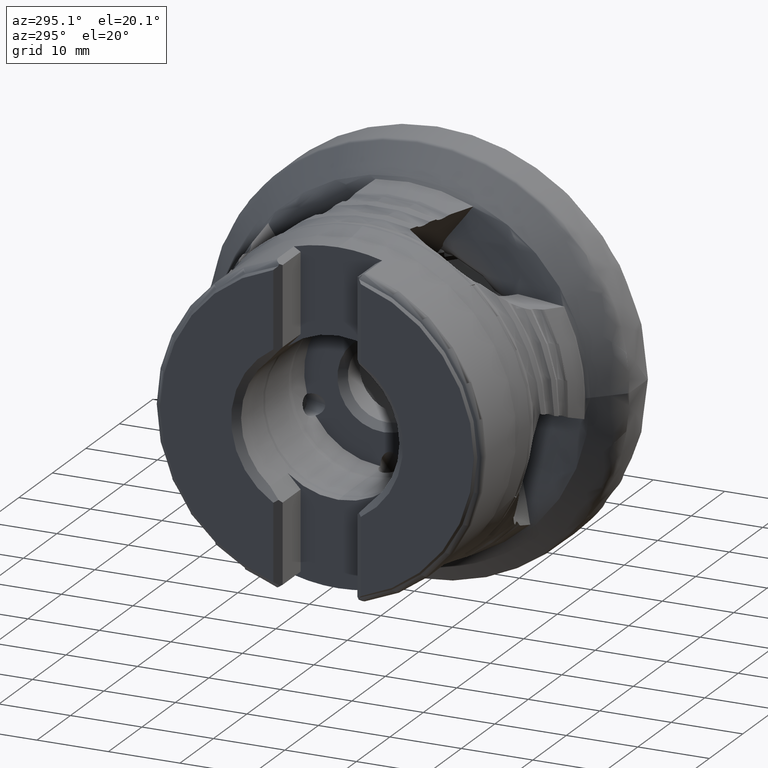
[diagram: clean part render]
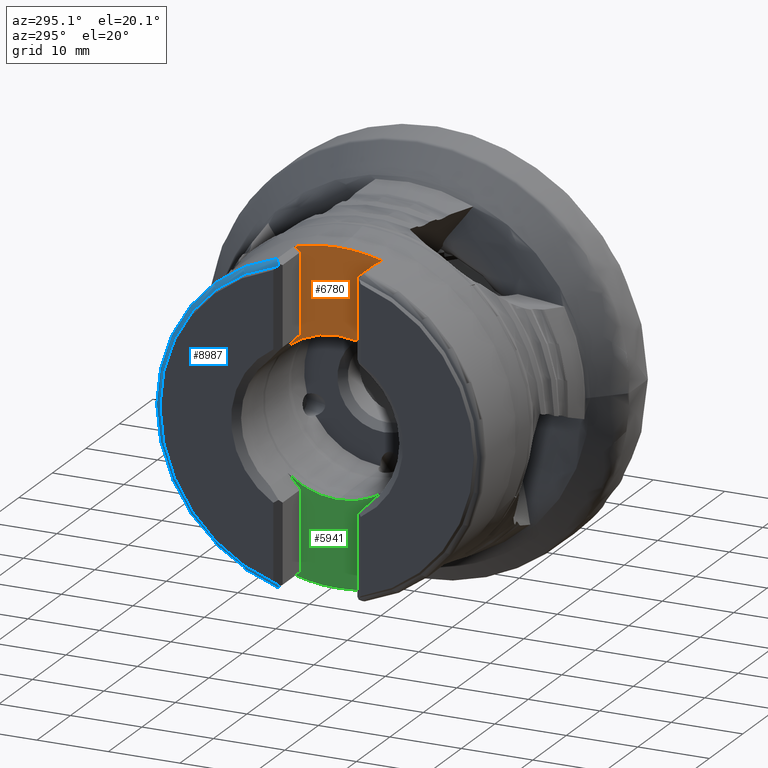
[diagram: same view with three faces highlighted in distinct colors, each labeled with its STEP entity id]
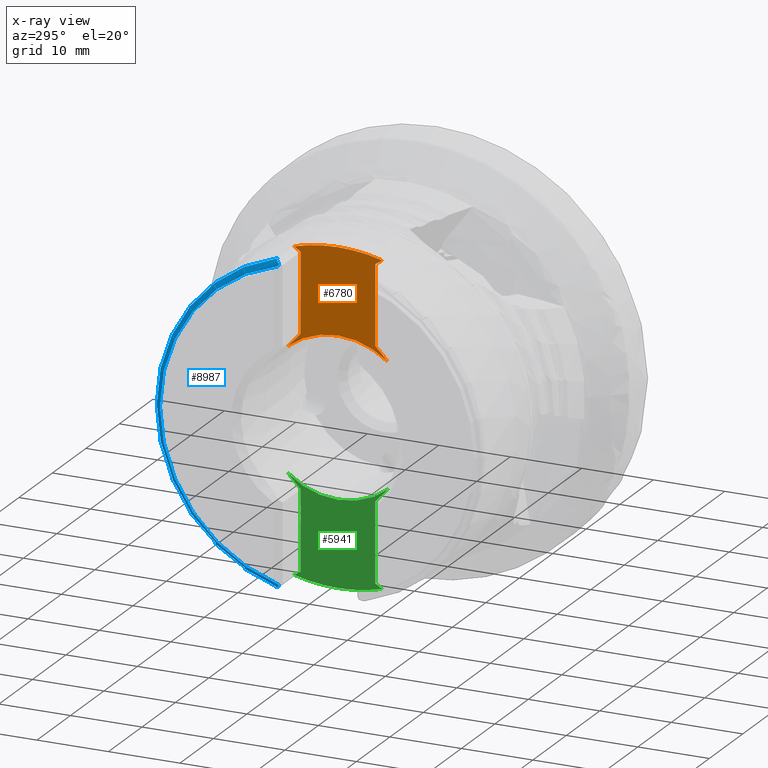
[diagram: x-ray of the same camera — body ghosted, the three highlighted faces saturated]
A machine part, auxiliary view with three faces highlighted in distinct colors.
The next image is the same camera in x-ray (body ghosted, the three faces saturated) — at least one of them is partly hidden behind the body in this view.
Their STEP definitions:

[orange] entity #6780 — the highlighted planar face has unit normal (1, 0, 0).
#7 = VERTEX_POINT ( 'NONE', #4798 ) ;
#51 = ORIENTED_EDGE ( 'NONE', *, *, #8656, .F. ) ;
#523 = CARTESIAN_POINT ( 'NONE',  ( -32.77900000000001800, 0.0000000000000000000, 0.0000000000000000000 ) ) ;
#537 = CARTESIAN_POINT ( 'NONE',  ( -32.77900000000001800, 2.816687638038911600E-015, 22.99999999999999300 ) ) ;
#590 = DIRECTION ( 'NONE',  ( -3.921983510904086700E-015, 1.000000000000000000, 4.440892098500626200E-015 ) ) ;
#642 = CARTESIAN_POINT ( 'NONE',  ( -32.77900000000003900, 5.229999999999996900, 10.48123730624397600 ) ) ;
#654 = LINE ( 'NONE', #5937, #8062 ) ;
#867 = ORIENTED_EDGE ( 'NONE', *, *, #6216, .T. ) ;
#948 = CARTESIAN_POINT ( 'NONE',  ( -32.77899999999999600, -5.230000000000003100, -30.00000000000000400 ) ) ;
#962 = ORIENTED_EDGE ( 'NONE', *, *, #4403, .T. ) ;
#1035 = AXIS2_PLACEMENT_3D ( 'NONE', #3174, #6946, #8511 ) ;
#1154 = EDGE_CURVE ( 'NONE', #5548, #6891, #654, .T. ) ;
#1320 = VERTEX_POINT ( 'NONE', #7067 ) ;
#1471 = AXIS2_PLACEMENT_3D ( 'NONE', #523, #4310, #590 ) ;
#1692 = FACE_OUTER_BOUND ( 'NONE', #8706, .T. ) ;
#2167 = DIRECTION ( 'NONE',  ( -2.712795907242793300E-015, 0.6815650443889295100, -0.7317575351625130700 ) ) ;
#2208 = EDGE_CURVE ( 'NONE', #2907, #3868, #7927, .T. ) ;
#2478 = ORIENTED_EDGE ( 'NONE', *, *, #7162, .T. ) ;
#2524 = DIRECTION ( 'NONE',  ( -3.980245069162847400E-015, 1.000000000000000000, 0.0000000000000000000 ) ) ;
#2907 = VERTEX_POINT ( 'NONE', #5744 ) ;
#2958 = VECTOR ( 'NONE', #4639, 1000.000000000000000 ) ;
#2970 = DIRECTION ( 'NONE',  ( -3.921983510904086700E-015, 1.000000000000000000, -8.881784197001252300E-016 ) ) ;
#2982 = CIRCLE ( 'NONE', #5565, 11.07499999999999800 ) ;
#3092 = CARTESIAN_POINT ( 'NONE',  ( -32.77900000000011700, 25.43243176921199800, 2.511602314343951600 ) ) ;
#3174 = CARTESIAN_POINT ( 'NONE',  ( -32.77900000000001800, 0.0000000000000000000, 0.0000000000000000000 ) ) ;
#3222 = DIRECTION ( 'NONE',  ( 1.000000000000000000, 3.980245069162847400E-015, 0.0000000000000000000 ) ) ;
#3420 = EDGE_CURVE ( 'NONE', #6065, #8264, #4841, .T. ) ;
#3451 = CARTESIAN_POINT ( 'NONE',  ( -32.77899999999999600, -5.230000000000003100, 21.56497531350624500 ) ) ;
#3555 = CIRCLE ( 'NONE', #1471, 22.99999999999999300 ) ;
#3667 = VECTOR ( 'NONE', #7630, 1000.000000000000000 ) ;
#3772 = LINE ( 'NONE', #948, #5526 ) ;
#3788 = ORIENTED_EDGE ( 'NONE', *, *, #5597, .T. ) ;
#3868 = VERTEX_POINT ( 'NONE', #4155 ) ;
#3945 = CARTESIAN_POINT ( 'NONE',  ( -32.77899999999994700, -17.88622751827882600, 7.200749130979175100 ) ) ;
#4041 = EDGE_CURVE ( 'NONE', #5548, #1320, #6608, .T. ) ;
#4155 = CARTESIAN_POINT ( 'NONE',  ( -32.77899999999999600, -5.230000000000003100, 10.48123730624394800 ) ) ;
#4252 = DIRECTION ( 'NONE',  ( -3.759220173674345600E-015, 1.000000000000000000, -3.552713678800500900E-015 ) ) ;
#4310 = DIRECTION ( 'NONE',  ( -1.000000000000000000, -3.980245069162846600E-015, -0.0000000000000000000 ) ) ;
#4403 = EDGE_CURVE ( 'NONE', #8264, #7, #3555, .T. ) ;
#4617 = DIRECTION ( 'NONE',  ( -2.712795907242801100E-015, 0.6815650443889314000, 0.7317575351625113000 ) ) ;
#4639 = DIRECTION ( 'NONE',  ( 3.380712572557630200E-015, -0.8493729692048046500, -0.5277931026303904800 ) ) ;
#4688 = CIRCLE ( 'NONE', #1035, 11.07499999999999800 ) ;
#4798 = CARTESIAN_POINT ( 'NONE',  ( -32.77900000000004600, 6.178756816328365700, 22.15452468920684100 ) ) ;
#4841 = CIRCLE ( 'NONE', #5698, 22.99999999999999300 ) ;
#4976 = DIRECTION ( 'NONE',  ( -0.0000000000000000000, -0.0000000000000000000, 1.000000000000000000 ) ) ;
#5100 = EDGE_CURVE ( 'NONE', #6773, #6891, #2982, .T. ) ;
#5204 = CARTESIAN_POINT ( 'NONE',  ( -32.77899999999998900, -6.178756816328315100, 22.15452468920685200 ) ) ;
#5526 = VECTOR ( 'NONE', #6777, 1000.000000000000000 ) ;
#5548 = VERTEX_POINT ( 'NONE', #642 ) ;
#5565 = AXIS2_PLACEMENT_3D ( 'NONE', #9468, #7247, #4252 ) ;
#5597 = EDGE_CURVE ( 'NONE', #7734, #6065, #9191, .T. ) ;
#5638 = AXIS2_PLACEMENT_3D ( 'NONE', #7736, #3222, #2524 ) ;
#5698 = AXIS2_PLACEMENT_3D ( 'NONE', #5870, #9612, #2970 ) ;
#5744 = CARTESIAN_POINT ( 'NONE',  ( -32.77899999999998900, -6.994599034640569500, 8.586687914708742000 ) ) ;
#5870 = CARTESIAN_POINT ( 'NONE',  ( -32.77900000000001800, 0.0000000000000000000, 0.0000000000000000000 ) ) ;
#5937 = CARTESIAN_POINT ( 'NONE',  ( -32.77900000000011700, 25.41962674328542700, -11.19521400701774300 ) ) ;
#5943 = CARTESIAN_POINT ( 'NONE',  ( -32.77900000000004600, 6.994599034640609500, 8.586687914708708300 ) ) ;
#6065 = VERTEX_POINT ( 'NONE', #5204 ) ;
#6166 = ORIENTED_EDGE ( 'NONE', *, *, #4041, .F. ) ;
#6216 = EDGE_CURVE ( 'NONE', #3868, #7734, #3772, .T. ) ;
#6283 = PLANE ( 'NONE',  #5638 ) ;
#6608 = LINE ( 'NONE', #9604, #9317 ) ;
#6773 = VERTEX_POINT ( 'NONE', #9299 ) ;
#6777 = DIRECTION ( 'NONE',  ( -0.0000000000000000000, -0.0000000000000000000, 1.000000000000000000 ) ) ;
#6780 = ADVANCED_FACE ( 'NONE', ( #1692 ), #6283, .F. ) ;
#6891 = VERTEX_POINT ( 'NONE', #5943 ) ;
#6908 = CARTESIAN_POINT ( 'NONE',  ( -32.77899999999993200, -20.56063342747943400, -5.978389873477842900 ) ) ;
#6946 = DIRECTION ( 'NONE',  ( -1.000000000000000000, -3.980245069162846600E-015, -0.0000000000000000000 ) ) ;
#7043 = ORIENTED_EDGE ( 'NONE', *, *, #1154, .T. ) ;
#7067 = CARTESIAN_POINT ( 'NONE',  ( -32.77900000000003900, 5.229999999999996900, 21.56497531350619600 ) ) ;
#7120 = ORIENTED_EDGE ( 'NONE', *, *, #2208, .T. ) ;
#7162 = EDGE_CURVE ( 'NONE', #7, #1320, #8143, .T. ) ;
#7247 = DIRECTION ( 'NONE',  ( -1.000000000000000000, -3.980245069162846600E-015, -0.0000000000000000000 ) ) ;
#7347 = ORIENTED_EDGE ( 'NONE', *, *, #3420, .T. ) ;
#7418 = ORIENTED_EDGE ( 'NONE', *, *, #5100, .F. ) ;
#7630 = DIRECTION ( 'NONE',  ( 3.380712572557625100E-015, -0.8493729692048034300, 0.5277931026303925900 ) ) ;
#7696 = VECTOR ( 'NONE', #4617, 1000.000000000000000 ) ;
#7734 = VERTEX_POINT ( 'NONE', #3451 ) ;
#7736 = CARTESIAN_POINT ( 'NONE',  ( -32.77900000000003900, 5.229999999999996900, -30.00000000000000400 ) ) ;
#7927 = LINE ( 'NONE', #6908, #7696 ) ;
#8062 = VECTOR ( 'NONE', #2167, 1000.000000000000100 ) ;
#8143 = LINE ( 'NONE', #3945, #2958 ) ;
#8264 = VERTEX_POINT ( 'NONE', #537 ) ;
#8511 = DIRECTION ( 'NONE',  ( -3.759220173674345600E-015, 1.000000000000000000, 3.552713678800500900E-015 ) ) ;
#8656 = EDGE_CURVE ( 'NONE', #2907, #6773, #4688, .T. ) ;
#8706 = EDGE_LOOP ( 'NONE', ( #7347, #962, #2478, #6166, #7043, #7418, #51, #7120, #867, #3788 ) ) ;
#9191 = LINE ( 'NONE', #3092, #3667 ) ;
#9299 = CARTESIAN_POINT ( 'NONE',  ( -32.77900000000001800, 1.356296330055693400E-015, 11.07499999999999800 ) ) ;
#9317 = VECTOR ( 'NONE', #4976, 1000.000000000000000 ) ;
#9468 = CARTESIAN_POINT ( 'NONE',  ( -32.77900000000001800, 0.0000000000000000000, 0.0000000000000000000 ) ) ;
#9604 = CARTESIAN_POINT ( 'NONE',  ( -32.77900000000003900, 5.229999999999996900, -30.00000000000000400 ) ) ;
#9612 = DIRECTION ( 'NONE',  ( -1.000000000000000000, -3.980245069162846600E-015, -0.0000000000000000000 ) ) ;

[blue] entity #8987 — the highlighted toroidal blend (fillet) surface has major radius 22 mm and minor (blend) radius 1 mm.
#1 = DIRECTION ( 'NONE',  ( 1.000000000000000000, -0.0000000000000000000, -0.0000000000000000000 ) ) ;
#10 = VERTEX_POINT ( 'NONE', #3369 ) ;
#96 = B_SPLINE_CURVE_WITH_KNOTS ( 'NONE', 3,
 ( #1119, #407, #8133, #610 ),
 .UNSPECIFIED., .F., .F.,
 ( 4, 4 ),
 ( 0.0006933271639351927700, 0.001021609949933638200 ),
 .UNSPECIFIED. ) ;
#304 = CARTESIAN_POINT ( 'NONE',  ( -38.48626718997515200, 5.562267189975131900, -21.77144330512069100 ) ) ;
#340 = ORIENTED_EDGE ( 'NONE', *, *, #697, .F. ) ;
#357 = CARTESIAN_POINT ( 'NONE',  ( -38.52845109553480500, 5.604451095534784600, -21.67906640292164500 ) ) ;
#407 = CARTESIAN_POINT ( 'NONE',  ( -38.52832986267406300, 5.604329862674041400, 21.67933188607262100 ) ) ;
#610 = CARTESIAN_POINT ( 'NONE',  ( -38.58276197310684100, 5.658761973106821100, 21.47185222405650200 ) ) ;
#669 = CARTESIAN_POINT ( 'NONE',  ( -38.40477827944226200, 5.719408224995584400, 21.86908940106080800 ) ) ;
#697 = EDGE_CURVE ( 'NONE', #3764, #10, #9112, .T. ) ;
#1119 = CARTESIAN_POINT ( 'NONE',  ( -38.48626718996848000, 5.562267189968464400, 21.77144330513528600 ) ) ;
#1215 = CARTESIAN_POINT ( 'NONE',  ( -38.30447744835070300, 5.873107255955463100, -21.96459666508115700 ) ) ;
#1349 = EDGE_CURVE ( 'NONE', #8056, #2113, #96, .T. ) ;
#1590 = CARTESIAN_POINT ( 'NONE',  ( -37.60400000000000600, 6.178756816328364800, -22.15452468920683800 ) ) ;
#1969 = VERTEX_POINT ( 'NONE', #1590 ) ;
#2105 = EDGE_LOOP ( 'NONE', ( #4444, #9287, #6471, #9620, #340, #9703 ) ) ;
#2113 = VERTEX_POINT ( 'NONE', #4552 ) ;
#2156 = CARTESIAN_POINT ( 'NONE',  ( -37.80944825546531300, 6.178756816328364800, 22.15452468920683800 ) ) ;
#2187 = CARTESIAN_POINT ( 'NONE',  ( -37.60400000000000600, 6.178756816328364800, 22.15452468920684100 ) ) ;
#2250 = CARTESIAN_POINT ( 'NONE',  ( -38.29564912743268900, 5.862270225035384600, 21.95786262670228000 ) ) ;
#2693 = CARTESIAN_POINT ( 'NONE',  ( -37.60400000000000600, 6.178756816328364800, -22.15452468920683800 ) ) ;
#2884 = DIRECTION ( 'NONE',  ( 0.0000000000000000000, 0.0000000000000000000, -1.000000000000000000 ) ) ;
#3043 = EDGE_CURVE ( 'NONE', #1969, #3951, #5318, .T. ) ;
#3240 = CARTESIAN_POINT ( 'NONE',  ( -38.58276197310684100, 5.658761973106821100, -21.47185222405650200 ) ) ;
#3369 = CARTESIAN_POINT ( 'NONE',  ( -38.48626718997515200, 5.562267189975131900, -21.77144330512069100 ) ) ;
#3406 = CIRCLE ( 'NONE', #4320, 22.20499999999999500 ) ;
#3581 = CARTESIAN_POINT ( 'NONE',  ( -38.58276197310684800, 0.0000000000000000000, 0.0000000000000000000 ) ) ;
#3764 = VERTEX_POINT ( 'NONE', #3240 ) ;
#3951 = VERTEX_POINT ( 'NONE', #8055 ) ;
#4023 = CARTESIAN_POINT ( 'NONE',  ( -38.56224443614210200, 5.638244436142082700, -21.57856421169857300 ) ) ;
#4037 = CARTESIAN_POINT ( 'NONE',  ( -38.48626718996848000, 5.562267189968464400, 21.77144330513528600 ) ) ;
#4208 = TOROIDAL_SURFACE ( 'NONE', #7782, 21.99999999999999600, 0.9999999999999974500 ) ;
#4320 = AXIS2_PLACEMENT_3D ( 'NONE', #3581, #4341, #2884 ) ;
#4323 = FACE_OUTER_BOUND ( 'NONE', #2105, .T. ) ;
#4341 = DIRECTION ( 'NONE',  ( 1.000000000000000000, -0.0000000000000000000, -0.0000000000000000000 ) ) ;
#4444 = ORIENTED_EDGE ( 'NONE', *, *, #1349, .F. ) ;
#4552 = CARTESIAN_POINT ( 'NONE',  ( -38.58276197310684100, 5.658761973106821100, 21.47185222405650200 ) ) ;
#4774 = B_SPLINE_CURVE_WITH_KNOTS ( 'NONE', 3,
 ( #5180, #6724, #669, #2250, #5900, #6622, #2156, #2187 ),
 .UNSPECIFIED., .F., .F.,
 ( 4, 2, 2, 4 ),
 ( 8.673617379884035500E-019, 0.0003006194894967648100, 0.0006012389789935287500, 0.001202477957987042700 ),
 .UNSPECIFIED. ) ;
#4970 = CARTESIAN_POINT ( 'NONE',  ( -38.41315591365124500, 5.723549691532777000, -21.87166287296578600 ) ) ;
#5180 = CARTESIAN_POINT ( 'NONE',  ( -38.48626718996848000, 5.562267189968464400, 21.77144330513528600 ) ) ;
#5227 = DIRECTION ( 'NONE',  ( 0.0000000000000000000, 0.0000000000000000000, -1.000000000000000000 ) ) ;
#5281 = B_SPLINE_CURVE_WITH_KNOTS ( 'NONE', 3,
 ( #2693, #8698, #5684, #1215, #4970, #6433 ),
 .UNSPECIFIED., .F., .F.,
 ( 4, 2, 4 ),
 ( 0.0000000000000000000, 0.0006038000595690746500, 0.001207600119138149300 ),
 .UNSPECIFIED. ) ;
#5318 = CIRCLE ( 'NONE', #6021, 22.99999999999999300 ) ;
#5562 = EDGE_CURVE ( 'NONE', #8056, #3951, #4774, .T. ) ;
#5614 = DIRECTION ( 'NONE',  ( 1.000000000000000000, -0.0000000000000000000, -0.0000000000000000000 ) ) ;
#5684 = CARTESIAN_POINT ( 'NONE',  ( -38.00358447745535500, 6.103035659518776700, -22.10747220962921800 ) ) ;
#5900 = CARTESIAN_POINT ( 'NONE',  ( -38.23017408173146900, 5.929748252911720000, 21.99979289642298500 ) ) ;
#6021 = AXIS2_PLACEMENT_3D ( 'NONE', #7508, #1, #5227 ) ;
#6433 = CARTESIAN_POINT ( 'NONE',  ( -38.48626718997515200, 5.562267189975131900, -21.77144330512069100 ) ) ;
#6471 = ORIENTED_EDGE ( 'NONE', *, *, #3043, .F. ) ;
#6622 = CARTESIAN_POINT ( 'NONE',  ( -38.00446512987654300, 6.102636578539629000, 22.10722422412011000 ) ) ;
#6724 = CARTESIAN_POINT ( 'NONE',  ( -38.44967731135339100, 5.642983974740590500, 21.82160002522624600 ) ) ;
#6915 = EDGE_CURVE ( 'NONE', #3764, #2113, #3406, .T. ) ;
#7508 = CARTESIAN_POINT ( 'NONE',  ( -37.60400000000000600, 0.0000000000000000000, 0.0000000000000000000 ) ) ;
#7782 = AXIS2_PLACEMENT_3D ( 'NONE', #7836, #5614, #8560 ) ;
#7836 = CARTESIAN_POINT ( 'NONE',  ( -37.60400000000000600, 0.0000000000000000000, 0.0000000000000000000 ) ) ;
#8055 = CARTESIAN_POINT ( 'NONE',  ( -37.60400000000000600, 6.178756816328364800, 22.15452468920684100 ) ) ;
#8056 = VERTEX_POINT ( 'NONE', #4037 ) ;
#8133 = CARTESIAN_POINT ( 'NONE',  ( -38.56239130587506000, 5.638391305875037700, 21.57780034022815500 ) ) ;
#8559 = EDGE_CURVE ( 'NONE', #1969, #10, #5281, .T. ) ;
#8560 = DIRECTION ( 'NONE',  ( 0.0000000000000000000, 0.0000000000000000000, -1.000000000000000000 ) ) ;
#8698 = CARTESIAN_POINT ( 'NONE',  ( -37.80868355957925800, 6.178756816328363000, -22.15452468920683800 ) ) ;
#8987 = ADVANCED_FACE ( 'NONE', ( #4323 ), #4208, .T. ) ;
#9112 = B_SPLINE_CURVE_WITH_KNOTS ( 'NONE', 3,
 ( #9308, #4023, #357, #304 ),
 .UNSPECIFIED., .F., .F.,
 ( 4, 4 ),
 ( 0.001301096222720296900, 0.001630357750963179500 ),
 .UNSPECIFIED. ) ;
#9287 = ORIENTED_EDGE ( 'NONE', *, *, #5562, .T. ) ;
#9308 = CARTESIAN_POINT ( 'NONE',  ( -38.58276197310684100, 5.658761973106821100, -21.47185222405650200 ) ) ;
#9620 = ORIENTED_EDGE ( 'NONE', *, *, #8559, .T. ) ;
#9703 = ORIENTED_EDGE ( 'NONE', *, *, #6915, .T. ) ;

[green] entity #5941 — the highlighted planar face has unit normal (1, 0, 0).
#16 = ORIENTED_EDGE ( 'NONE', *, *, #1927, .F. ) ;
#179 = DIRECTION ( 'NONE',  ( 2.712795907242793300E-015, -0.6815650443889295100, -0.7317575351625130700 ) ) ;
#372 = LINE ( 'NONE', #6969, #5411 ) ;
#469 = VERTEX_POINT ( 'NONE', #7944 ) ;
#485 = DIRECTION ( 'NONE',  ( -1.000000000000000000, -3.980245069162846600E-015, -0.0000000000000000000 ) ) ;
#628 = VERTEX_POINT ( 'NONE', #3817 ) ;
#700 = VERTEX_POINT ( 'NONE', #6361 ) ;
#729 = DIRECTION ( 'NONE',  ( -1.000000000000000000, -3.980245069162846600E-015, -0.0000000000000000000 ) ) ;
#759 = LINE ( 'NONE', #5522, #1941 ) ;
#1055 = AXIS2_PLACEMENT_3D ( 'NONE', #9571, #729, #2300 ) ;
#1443 = ORIENTED_EDGE ( 'NONE', *, *, #3262, .T. ) ;
#1455 = FACE_OUTER_BOUND ( 'NONE', #2514, .T. ) ;
#1624 = AXIS2_PLACEMENT_3D ( 'NONE', #5448, #2544, #7706 ) ;
#1927 = EDGE_CURVE ( 'NONE', #628, #700, #9436, .T. ) ;
#1941 = VECTOR ( 'NONE', #8599, 1000.000000000000000 ) ;
#2209 = ORIENTED_EDGE ( 'NONE', *, *, #8063, .T. ) ;
#2238 = EDGE_CURVE ( 'NONE', #9643, #7414, #759, .T. ) ;
#2300 = DIRECTION ( 'NONE',  ( -3.759220173674345600E-015, 1.000000000000000000, 0.0000000000000000000 ) ) ;
#2382 = VECTOR ( 'NONE', #6258, 1000.000000000000200 ) ;
#2487 = DIRECTION ( 'NONE',  ( -0.0000000000000000000, -0.0000000000000000000, 1.000000000000000000 ) ) ;
#2514 = EDGE_LOOP ( 'NONE', ( #8967, #2209, #6640, #5030, #1443, #2703, #16, #2971, #5827, #7779 ) ) ;
#2544 = DIRECTION ( 'NONE',  ( -1.000000000000000000, -3.980245069162846600E-015, -0.0000000000000000000 ) ) ;
#2575 = CARTESIAN_POINT ( 'NONE',  ( -32.77899999999998900, -6.994599034640567800, -8.586687914708742000 ) ) ;
#2703 = ORIENTED_EDGE ( 'NONE', *, *, #8940, .F. ) ;
#2756 = DIRECTION ( 'NONE',  ( -3.759220173674345600E-015, 1.000000000000000000, 0.0000000000000000000 ) ) ;
#2971 = ORIENTED_EDGE ( 'NONE', *, *, #8343, .T. ) ;
#3262 = EDGE_CURVE ( 'NONE', #469, #7267, #6470, .T. ) ;
#3270 = VERTEX_POINT ( 'NONE', #3314 ) ;
#3292 = EDGE_CURVE ( 'NONE', #5723, #4720, #5778, .T. ) ;
#3314 = CARTESIAN_POINT ( 'NONE',  ( -32.77899999999999600, -5.230000000000003100, -21.56497531350625600 ) ) ;
#3349 = AXIS2_PLACEMENT_3D ( 'NONE', #9395, #485, #2756 ) ;
#3817 = CARTESIAN_POINT ( 'NONE',  ( -32.77900000000004600, 6.994599034640602400, -8.586687914708715400 ) ) ;
#3989 = VECTOR ( 'NONE', #179, 1000.000000000000100 ) ;
#4249 = DIRECTION ( 'NONE',  ( 1.000000000000000000, 3.980245069162847400E-015, 0.0000000000000000000 ) ) ;
#4652 = CARTESIAN_POINT ( 'NONE',  ( -32.77899999999998900, -6.178756816328315100, -22.15452468920685500 ) ) ;
#4712 = AXIS2_PLACEMENT_3D ( 'NONE', #7098, #7862, #6259 ) ;
#4720 = VERTEX_POINT ( 'NONE', #5111 ) ;
#4800 = CARTESIAN_POINT ( 'NONE',  ( -32.77900000000001100, -1.465159913207607400, -19.22553586539692800 ) ) ;
#4863 = CARTESIAN_POINT ( 'NONE',  ( -32.77900000000005300, 9.363787988618886600, -26.14975554254900200 ) ) ;
#5030 = ORIENTED_EDGE ( 'NONE', *, *, #6748, .T. ) ;
#5099 = DIRECTION ( 'NONE',  ( -3.980245069162847400E-015, 1.000000000000000000, 0.0000000000000000000 ) ) ;
#5111 = CARTESIAN_POINT ( 'NONE',  ( -32.77900000000001800, 0.0000000000000000000, -22.99999999999999300 ) ) ;
#5182 = CARTESIAN_POINT ( 'NONE',  ( -32.77900000000003900, 5.229999999999996900, -10.48123730624399600 ) ) ;
#5408 = CARTESIAN_POINT ( 'NONE',  ( -32.77899999999999600, -4.504794672812886700, -20.93293140900926000 ) ) ;
#5411 = VECTOR ( 'NONE', #2487, 1000.000000000000000 ) ;
#5448 = CARTESIAN_POINT ( 'NONE',  ( -32.77900000000001800, 0.0000000000000000000, 0.0000000000000000000 ) ) ;
#5505 = LINE ( 'NONE', #5408, #3989 ) ;
#5522 = CARTESIAN_POINT ( 'NONE',  ( -32.77900000000003900, 5.229999999999996900, -30.00000000000000400 ) ) ;
#5723 = VERTEX_POINT ( 'NONE', #8544 ) ;
#5778 = CIRCLE ( 'NONE', #4712, 22.99999999999999300 ) ;
#5827 = ORIENTED_EDGE ( 'NONE', *, *, #2238, .F. ) ;
#5864 = VECTOR ( 'NONE', #9222, 1000.000000000000000 ) ;
#5941 = ADVANCED_FACE ( 'NONE', ( #1455 ), #9466, .F. ) ;
#6219 = CARTESIAN_POINT ( 'NONE',  ( -32.77900000000005300, 9.011364164140632100, -23.91468268203200500 ) ) ;
#6258 = DIRECTION ( 'NONE',  ( -3.380712572557613300E-015, 0.8493729692048004300, 0.5277931026303973600 ) ) ;
#6259 = DIRECTION ( 'NONE',  ( -3.921983510904086700E-015, 1.000000000000000000, 0.0000000000000000000 ) ) ;
#6284 = DIRECTION ( 'NONE',  ( 2.712795907242801100E-015, -0.6815650443889314000, 0.7317575351625113000 ) ) ;
#6361 = CARTESIAN_POINT ( 'NONE',  ( -32.77900000000001800, 0.0000000000000000000, -11.07499999999999800 ) ) ;
#6470 = LINE ( 'NONE', #4863, #7313 ) ;
#6640 = ORIENTED_EDGE ( 'NONE', *, *, #6746, .T. ) ;
#6684 = LINE ( 'NONE', #6219, #5864 ) ;
#6746 = EDGE_CURVE ( 'NONE', #8338, #3270, #7425, .T. ) ;
#6748 = EDGE_CURVE ( 'NONE', #3270, #469, #372, .T. ) ;
#6969 = CARTESIAN_POINT ( 'NONE',  ( -32.77899999999999600, -5.230000000000003100, -30.00000000000000400 ) ) ;
#7098 = CARTESIAN_POINT ( 'NONE',  ( -32.77900000000001800, 0.0000000000000000000, 0.0000000000000000000 ) ) ;
#7151 = CIRCLE ( 'NONE', #1624, 22.99999999999999300 ) ;
#7218 = CARTESIAN_POINT ( 'NONE',  ( -32.77900000000003900, 5.229999999999996900, -21.56497531350621300 ) ) ;
#7267 = VERTEX_POINT ( 'NONE', #2575 ) ;
#7313 = VECTOR ( 'NONE', #6284, 1000.000000000000000 ) ;
#7414 = VERTEX_POINT ( 'NONE', #5182 ) ;
#7425 = LINE ( 'NONE', #4800, #2382 ) ;
#7483 = AXIS2_PLACEMENT_3D ( 'NONE', #8086, #4249, #5099 ) ;
#7628 = EDGE_CURVE ( 'NONE', #9643, #5723, #6684, .T. ) ;
#7706 = DIRECTION ( 'NONE',  ( -3.921983510904086700E-015, 1.000000000000000000, 0.0000000000000000000 ) ) ;
#7779 = ORIENTED_EDGE ( 'NONE', *, *, #7628, .T. ) ;
#7862 = DIRECTION ( 'NONE',  ( -1.000000000000000000, -3.980245069162846600E-015, -0.0000000000000000000 ) ) ;
#7944 = CARTESIAN_POINT ( 'NONE',  ( -32.77899999999999600, -5.230000000000003100, -10.48123730624397300 ) ) ;
#7990 = CIRCLE ( 'NONE', #3349, 11.07499999999999800 ) ;
#8063 = EDGE_CURVE ( 'NONE', #4720, #8338, #7151, .T. ) ;
#8086 = CARTESIAN_POINT ( 'NONE',  ( -32.77900000000003900, 5.229999999999996900, -30.00000000000000400 ) ) ;
#8338 = VERTEX_POINT ( 'NONE', #4652 ) ;
#8343 = EDGE_CURVE ( 'NONE', #628, #7414, #5505, .T. ) ;
#8544 = CARTESIAN_POINT ( 'NONE',  ( -32.77900000000004600, 6.178756816328366600, -22.15452468920684100 ) ) ;
#8599 = DIRECTION ( 'NONE',  ( -0.0000000000000000000, -0.0000000000000000000, 1.000000000000000000 ) ) ;
#8940 = EDGE_CURVE ( 'NONE', #700, #7267, #7990, .T. ) ;
#8967 = ORIENTED_EDGE ( 'NONE', *, *, #3292, .T. ) ;
#9222 = DIRECTION ( 'NONE',  ( -3.380712572557630200E-015, 0.8493729692048046500, -0.5277931026303904800 ) ) ;
#9395 = CARTESIAN_POINT ( 'NONE',  ( -32.77900000000001800, 0.0000000000000000000, 0.0000000000000000000 ) ) ;
#9436 = CIRCLE ( 'NONE', #1055, 11.07499999999999800 ) ;
#9466 = PLANE ( 'NONE',  #7483 ) ;
#9571 = CARTESIAN_POINT ( 'NONE',  ( -32.77900000000001800, 0.0000000000000000000, 0.0000000000000000000 ) ) ;
#9643 = VERTEX_POINT ( 'NONE', #7218 ) ;